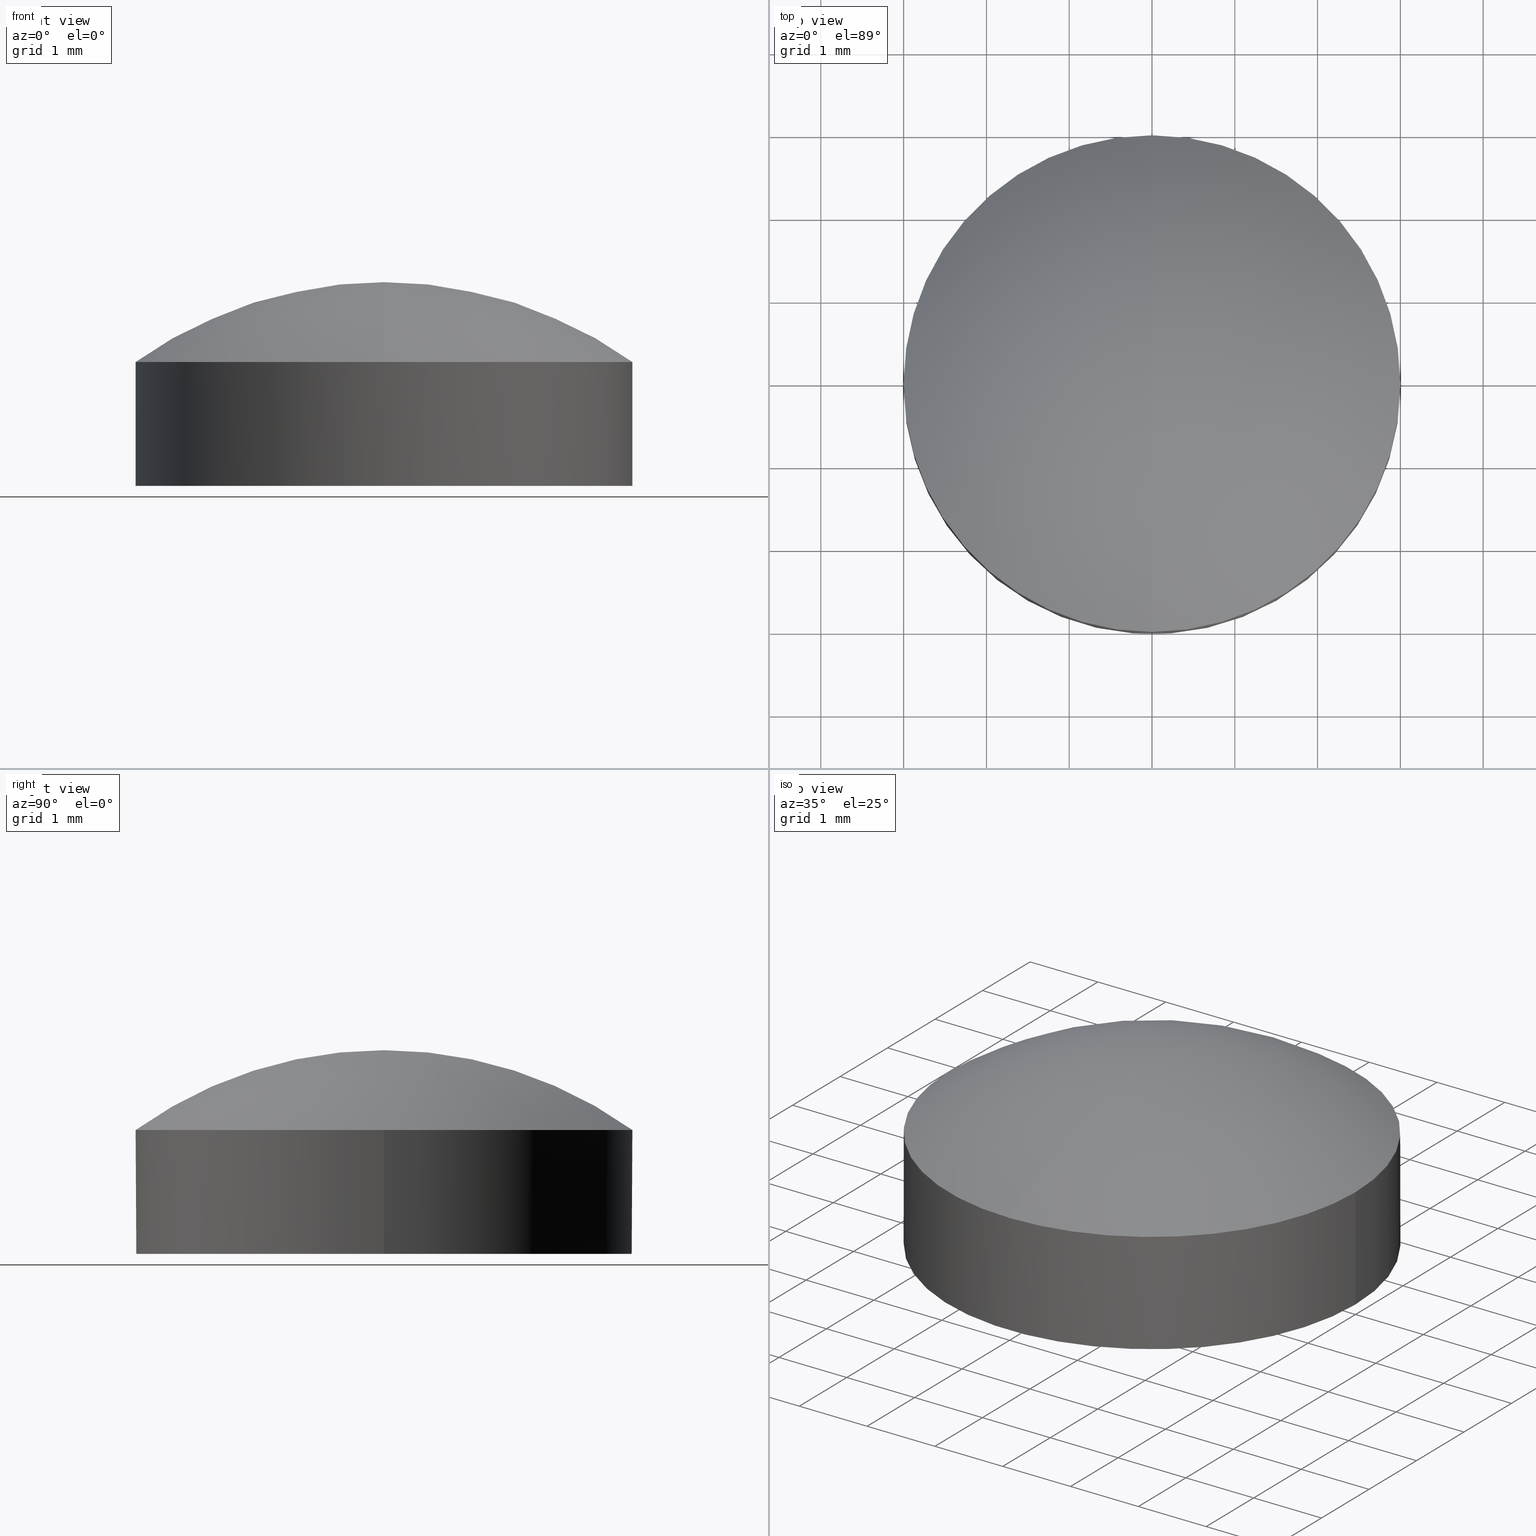
[diagram: canonical four-view strip — front | top / right | iso, engineering-drawing reading convention]
A machine part, canonical four-view strip (front | top / right | iso — engineering-drawing reading convention). The complete STEP part file that produces these views, byte-faithful:
ISO-10303-21;
HEADER;
FILE_DESCRIPTION (( 'STEP AP214' ),
    '1' );
FILE_NAME ('4411-E0W.STEP',
    '2009-12-21T17:00:14',
    ( ' ' ),
    ( ' ' ),
    'SwSTEP 2.0',
    'SolidWorks 2009',
    '' );
FILE_SCHEMA (( 'AUTOMOTIVE_DESIGN' ));
ENDSEC;

DATA;
#1 = VERTEX_POINT ( 'NONE', #44 ) ;
#2 = ORIENTED_EDGE ( 'NONE', *, *, #22, .F. ) ;
#3 = ORIENTED_EDGE ( 'NONE', *, *, #65, .F. ) ;
#4 = ADVANCED_FACE ( 'NONE', ( #34 ), #86, .T. ) ;
#5 = EDGE_LOOP ( 'NONE', ( #11, #6, #67, #3, #2 ) ) ;
#6 = ORIENTED_EDGE ( 'NONE', *, *, #9, .T. ) ;
#7 = ORIENTED_EDGE ( 'NONE', *, *, #68, .T. ) ;
#8 = ORIENTED_EDGE ( 'NONE', *, *, #65, .T. ) ;
#9 = EDGE_CURVE ( 'NONE', #1, #38, #80, .T. ) ;
#10 = EDGE_LOOP ( 'NONE', ( #63, #66 ) ) ;
#11 = ORIENTED_EDGE ( 'NONE', *, *, #41, .F. ) ;
#12 = ADVANCED_FACE ( 'NONE', ( #77 ), #32, .F. ) ;
#13 = CLOSED_SHELL ( 'NONE', ( #15, #37, #69, #4, #12 ) ) ;
#14 = VERTEX_POINT ( 'NONE', #121 ) ;
#15 = ADVANCED_FACE ( 'NONE', ( #124 ), #130, .T. ) ;
#16 = EDGE_CURVE ( 'NONE', #40, #30, #137, .T. ) ;
#17 = MANIFOLD_SOLID_BREP ( 'NONE', #13 ) ;
#18 = ORIENTED_EDGE ( 'NONE', *, *, #22, .T. ) ;
#19 = EDGE_CURVE ( 'NONE', #38, #1, #60, .T. ) ;
#20 = CARTESIAN_POINT ( 'NONE',  ( 0.0000000000000000000, 4.518946688853733400E-016, -1.230000000000000000 ) ) ;
#21 = AXIS2_PLACEMENT_3D ( 'NONE', #20, #48, #47 ) ;
#22 = EDGE_CURVE ( 'NONE', #36, #14, #171, .T. ) ;
#23 = EDGE_CURVE ( 'NONE', #30, #36, #177, .T. ) ;
#24 = EDGE_CURVE ( 'NONE', #14, #31, #152, .T. ) ;
#25 = ORIENTED_EDGE ( 'NONE', *, *, #19, .T. ) ;
#26 = EDGE_CURVE ( 'NONE', #38, #40, #168, .T. ) ;
#27 = ORIENTED_EDGE ( 'NONE', *, *, #23, .F. ) ;
#28 = ORIENTED_EDGE ( 'NONE', *, *, #41, .T. ) ;
#29 = ORIENTED_EDGE ( 'NONE', *, *, #23, .T. ) ;
#30 = VERTEX_POINT ( 'NONE', #175 ) ;
#31 = VERTEX_POINT ( 'NONE', #174 ) ;
#32 = PLANE ( 'NONE',  #21 ) ;
#33 = EDGE_LOOP ( 'NONE', ( #29, #18, #45, #61 ) ) ;
#34 = FACE_OUTER_BOUND ( 'NONE', #5, .T. ) ;
#35 = EDGE_LOOP ( 'NONE', ( #25, #28, #27, #42, #39 ) ) ;
#36 = VERTEX_POINT ( 'NONE', #161 ) ;
#37 = ADVANCED_FACE ( 'NONE', ( #160 ), #203, .T. ) ;
#38 = VERTEX_POINT ( 'NONE', #201 ) ;
#39 = ORIENTED_EDGE ( 'NONE', *, *, #26, .F. ) ;
#40 = VERTEX_POINT ( 'NONE', #196 ) ;
#41 = EDGE_CURVE ( 'NONE', #1, #36, #198, .T. ) ;
#42 = ORIENTED_EDGE ( 'NONE', *, *, #16, .F. ) ;
#43 = COLOUR_RGB ( '',0.9568627450980391500, 0.9490196078431372100, 0.9607843137254902200 ) ;
#44 = CARTESIAN_POINT ( 'NONE',  ( -2.999999999999999100, 3.673819061467130800E-016, -1.230000000000000200 ) ) ;
#45 = ORIENTED_EDGE ( 'NONE', *, *, #24, .T. ) ;
#46 =( GEOMETRIC_REPRESENTATION_CONTEXT ( 3 ) GLOBAL_UNCERTAINTY_ASSIGNED_CONTEXT ( ( #115 ) ) GLOBAL_UNIT_ASSIGNED_CONTEXT ( ( #113, #111, #122 ) ) REPRESENTATION_CONTEXT ( 'NONE', 'WORKASPACE' ) );
#47 = DIRECTION ( 'NONE',  ( 1.000000000000000000, 0.0000000000000000000, 0.0000000000000000000 ) ) ;
#48 = DIRECTION ( 'NONE',  ( 0.0000000000000000000, -0.0000000000000000000, 1.000000000000000000 ) ) ;
#49 = UNCERTAINTY_MEASURE_WITH_UNIT (LENGTH_MEASURE( 1.000000000000000100E-005 ), #162, 'distance_accuracy_value', 'NONE');
#50 = DIRECTION ( 'NONE',  ( 0.0000000000000000000, 0.0000000000000000000, -1.000000000000000000 ) ) ;
#51 = AXIS2_PLACEMENT_3D ( 'NONE', #58, #53, #56 ) ;
#52 =( GEOMETRIC_REPRESENTATION_CONTEXT ( 3 ) GLOBAL_UNCERTAINTY_ASSIGNED_CONTEXT ( ( #49 ) ) GLOBAL_UNIT_ASSIGNED_CONTEXT ( ( #162, #57, #54 ) ) REPRESENTATION_CONTEXT ( 'NONE', 'WORKASPACE' ) );
#53 = DIRECTION ( 'NONE',  ( -0.0000000000000000000, -0.0000000000000000000, 1.000000000000000000 ) ) ;
#54 =( NAMED_UNIT ( * ) SI_UNIT ( $, .STERADIAN. ) SOLID_ANGLE_UNIT ( ) );
#55 = DIRECTION ( 'NONE',  ( 1.000000000000000000, 0.0000000000000000000, 0.0000000000000000000 ) ) ;
#56 = DIRECTION ( 'NONE',  ( 1.000000000000000000, 0.0000000000000000000, 0.0000000000000000000 ) ) ;
#57 =( NAMED_UNIT ( * ) PLANE_ANGLE_UNIT ( ) SI_UNIT ( $, .RADIAN. ) );
#58 = CARTESIAN_POINT ( 'NONE',  ( 0.0000000000000000000, 0.0000000000000000000, -1.230000000000000200 ) ) ;
#59 =( GEOMETRIC_REPRESENTATION_CONTEXT ( 3 ) GLOBAL_UNCERTAINTY_ASSIGNED_CONTEXT ( ( #143 ) ) GLOBAL_UNIT_ASSIGNED_CONTEXT ( ( #138, #146, #144 ) ) REPRESENTATION_CONTEXT ( 'NONE', 'WORKASPACE' ) );
#60 = CIRCLE ( 'NONE', #51, 2.999999999999999100 ) ;
#61 = ORIENTED_EDGE ( 'NONE', *, *, #68, .F. ) ;
#62 = EDGE_LOOP ( 'NONE', ( #70, #8, #64, #7 ) ) ;
#63 = ORIENTED_EDGE ( 'NONE', *, *, #19, .F. ) ;
#64 = ORIENTED_EDGE ( 'NONE', *, *, #16, .T. ) ;
#65 = EDGE_CURVE ( 'NONE', #14, #40, #199, .T. ) ;
#66 = ORIENTED_EDGE ( 'NONE', *, *, #9, .F. ) ;
#67 = ORIENTED_EDGE ( 'NONE', *, *, #26, .T. ) ;
#68 = EDGE_CURVE ( 'NONE', #30, #31, #192, .T. ) ;
#69 = ADVANCED_FACE ( 'NONE', ( #212 ), #260, .T. ) ;
#70 = ORIENTED_EDGE ( 'NONE', *, *, #24, .F. ) ;
#71 =( LENGTH_UNIT ( ) NAMED_UNIT ( * ) SI_UNIT ( .MILLI., .METRE. ) );
#72 =( NAMED_UNIT ( * ) SI_UNIT ( $, .STERADIAN. ) SOLID_ANGLE_UNIT ( ) );
#73 = DIRECTION ( 'NONE',  ( 1.000000000000000000, 0.0000000000000000000, 0.0000000000000000000 ) ) ;
#74 = DIRECTION ( 'NONE',  ( -0.0000000000000000000, -0.0000000000000000000, 1.000000000000000000 ) ) ;
#75 = CARTESIAN_POINT ( 'NONE',  ( 0.0000000000000000000, 0.0000000000000000000, -1.230000000000000200 ) ) ;
#76 = AXIS2_PLACEMENT_3D ( 'NONE', #75, #74, #73 ) ;
#77 = FACE_OUTER_BOUND ( 'NONE', #10, .T. ) ;
#78 = PRESENTATION_LAYER_ASSIGNMENT (  '', '', ( #92 ) ) ;
#79 = MECHANICAL_DESIGN_GEOMETRIC_PRESENTATION_REPRESENTATION (  '', ( #92 ), #87 ) ;
#80 = CIRCLE ( 'NONE', #76, 2.999999999999999100 ) ;
#81 = DIRECTION ( 'NONE',  ( 1.000000000000000000, 0.0000000000000000000, 0.0000000000000000000 ) ) ;
#82 = DIRECTION ( 'NONE',  ( -0.0000000000000000000, -0.0000000000000000000, 1.000000000000000000 ) ) ;
#83 = CARTESIAN_POINT ( 'NONE',  ( 0.0000000000000000000, 0.0000000000000000000, 4.308132045400366600 ) ) ;
#84 = FILL_AREA_STYLE_COLOUR ( '', #43 ) ;
#85 = FILL_AREA_STYLE ('',( #84 ) ) ;
#86 = CYLINDRICAL_SURFACE ( 'NONE', #95, 2.999999999999999100 ) ;
#87 =( GEOMETRIC_REPRESENTATION_CONTEXT ( 3 ) GLOBAL_UNCERTAINTY_ASSIGNED_CONTEXT ( ( #108 ) ) GLOBAL_UNIT_ASSIGNED_CONTEXT ( ( #71, #89, #72 ) ) REPRESENTATION_CONTEXT ( 'NONE', 'WORKASPACE' ) );
#88 = PRESENTATION_STYLE_ASSIGNMENT (( #94 ) ) ;
#89 =( NAMED_UNIT ( * ) PLANE_ANGLE_UNIT ( ) SI_UNIT ( $, .RADIAN. ) );
#90 =( GEOMETRIC_REPRESENTATION_CONTEXT ( 3 ) GLOBAL_UNCERTAINTY_ASSIGNED_CONTEXT ( ( #91 ) ) GLOBAL_UNIT_ASSIGNED_CONTEXT ( ( #96, #110, #109 ) ) REPRESENTATION_CONTEXT ( 'NONE', 'WORKASPACE' ) );
#91 = UNCERTAINTY_MEASURE_WITH_UNIT (LENGTH_MEASURE( 1.000000000000000100E-005 ), #96, 'distance_accuracy_value', 'NONE');
#92 = STYLED_ITEM ( 'NONE', ( #88 ), #4 ) ;
#93 = SURFACE_SIDE_STYLE ('',( #107 ) ) ;
#94 = SURFACE_STYLE_USAGE ( .BOTH. , #93 ) ;
#95 = AXIS2_PLACEMENT_3D ( 'NONE', #83, #82, #81 ) ;
#96 =( LENGTH_UNIT ( ) NAMED_UNIT ( * ) SI_UNIT ( .MILLI., .METRE. ) );
#97 = MECHANICAL_DESIGN_GEOMETRIC_PRESENTATION_REPRESENTATION (  '', ( #99 ), #90 ) ;
#98 = PRESENTATION_LAYER_ASSIGNMENT (  '', '', ( #99 ) ) ;
#99 = STYLED_ITEM ( 'NONE', ( #100 ), #12 ) ;
#100 = PRESENTATION_STYLE_ASSIGNMENT (( #101 ) ) ;
#101 = SURFACE_STYLE_USAGE ( .BOTH. , #102 ) ;
#102 = SURFACE_SIDE_STYLE ('',( #103 ) ) ;
#103 = SURFACE_STYLE_FILL_AREA ( #104 ) ;
#104 = FILL_AREA_STYLE ('',( #105 ) ) ;
#105 = FILL_AREA_STYLE_COLOUR ( '', #106 ) ;
#106 = COLOUR_RGB ( '',0.9568627450980391500, 0.9490196078431372100, 0.9607843137254902200 ) ;
#107 = SURFACE_STYLE_FILL_AREA ( #85 ) ;
#108 = UNCERTAINTY_MEASURE_WITH_UNIT (LENGTH_MEASURE( 1.000000000000000100E-005 ), #71, 'distance_accuracy_value', 'NONE');
#109 =( NAMED_UNIT ( * ) SI_UNIT ( $, .STERADIAN. ) SOLID_ANGLE_UNIT ( ) );
#110 =( NAMED_UNIT ( * ) PLANE_ANGLE_UNIT ( ) SI_UNIT ( $, .RADIAN. ) );
#111 =( NAMED_UNIT ( * ) PLANE_ANGLE_UNIT ( ) SI_UNIT ( $, .RADIAN. ) );
#112 = SURFACE_STYLE_FILL_AREA ( #126 ) ;
#113 =( LENGTH_UNIT ( ) NAMED_UNIT ( * ) SI_UNIT ( .MILLI., .METRE. ) );
#114 = MECHANICAL_DESIGN_GEOMETRIC_PRESENTATION_REPRESENTATION (  '', ( #123 ), #46 ) ;
#115 = UNCERTAINTY_MEASURE_WITH_UNIT (LENGTH_MEASURE( 1.000000000000000100E-005 ), #113, 'distance_accuracy_value', 'NONE');
#116 = FILL_AREA_STYLE_COLOUR ( '', #120 ) ;
#117 = PRESENTATION_LAYER_ASSIGNMENT (  '', '', ( #123 ) ) ;
#118 = PRESENTATION_STYLE_ASSIGNMENT (( #119 ) ) ;
#119 = SURFACE_STYLE_USAGE ( .BOTH. , #125 ) ;
#120 = COLOUR_RGB ( '',0.9568627450980391500, 0.9490196078431372100, 0.9607843137254902200 ) ;
#121 = CARTESIAN_POINT ( 'NONE',  ( -3.673819061467129300E-016, -2.999999999999998200, 0.2659885331902224200 ) ) ;
#122 =( NAMED_UNIT ( * ) SI_UNIT ( $, .STERADIAN. ) SOLID_ANGLE_UNIT ( ) );
#123 = STYLED_ITEM ( 'NONE', ( #118 ), #15 ) ;
#124 = FACE_OUTER_BOUND ( 'NONE', #35, .T. ) ;
#125 = SURFACE_SIDE_STYLE ('',( #112 ) ) ;
#126 = FILL_AREA_STYLE ('',( #116 ) ) ;
#127 = CARTESIAN_POINT ( 'NONE',  ( 0.0000000000000000000, 0.0000000000000000000, 4.308132045400366600 ) ) ;
#128 = DIRECTION ( 'NONE',  ( 1.000000000000000000, 0.0000000000000000000, 0.0000000000000000000 ) ) ;
#129 = AXIS2_PLACEMENT_3D ( 'NONE', #127, #131, #128 ) ;
#130 = CYLINDRICAL_SURFACE ( 'NONE', #129, 2.999999999999999100 ) ;
#131 = DIRECTION ( 'NONE',  ( -0.0000000000000000000, -0.0000000000000000000, 1.000000000000000000 ) ) ;
#132 = MECHANICAL_DESIGN_GEOMETRIC_PRESENTATION_REPRESENTATION (  '', ( #145 ), #59 ) ;
#133 = FILL_AREA_STYLE ('',( #150 ) ) ;
#134 = DIRECTION ( 'NONE',  ( 1.000000000000000000, 0.0000000000000000000, 0.0000000000000000000 ) ) ;
#135 = SURFACE_SIDE_STYLE ('',( #136 ) ) ;
#136 = SURFACE_STYLE_FILL_AREA ( #133 ) ;
#137 = CIRCLE ( 'NONE', #142, 2.999999999999999100 ) ;
#138 =( LENGTH_UNIT ( ) NAMED_UNIT ( * ) SI_UNIT ( .MILLI., .METRE. ) );
#139 = SURFACE_STYLE_USAGE ( .BOTH. , #135 ) ;
#140 = PRESENTATION_STYLE_ASSIGNMENT (( #139 ) ) ;
#141 = COLOUR_RGB ( '',0.7960784313725489700, 0.8235294117647058400, 0.9372549019607843100 ) ;
#142 = AXIS2_PLACEMENT_3D ( 'NONE', #147, #149, #134 ) ;
#143 = UNCERTAINTY_MEASURE_WITH_UNIT (LENGTH_MEASURE( 1.000000000000000100E-005 ), #138, 'distance_accuracy_value', 'NONE');
#144 =( NAMED_UNIT ( * ) SI_UNIT ( $, .STERADIAN. ) SOLID_ANGLE_UNIT ( ) );
#145 = STYLED_ITEM ( 'NONE', ( #140 ), #17 ) ;
#146 =( NAMED_UNIT ( * ) PLANE_ANGLE_UNIT ( ) SI_UNIT ( $, .RADIAN. ) );
#147 = CARTESIAN_POINT ( 'NONE',  ( 0.0000000000000000000, 0.0000000000000000000, 0.2659885331902219800 ) ) ;
#148 = PRESENTATION_LAYER_ASSIGNMENT (  '', '', ( #145 ) ) ;
#149 = DIRECTION ( 'NONE',  ( -0.0000000000000000000, -0.0000000000000000000, 1.000000000000000000 ) ) ;
#150 = FILL_AREA_STYLE_COLOUR ( '', #141 ) ;
#151 = AXIS2_PLACEMENT_3D ( 'NONE', #169, #180, #178 ) ;
#152 = CIRCLE ( 'NONE', #184, 5.149999999999998600 ) ;
#153 = PRESENTATION_STYLE_ASSIGNMENT (( #154 ) ) ;
#154 = SURFACE_STYLE_USAGE ( .BOTH. , #155 ) ;
#155 = SURFACE_SIDE_STYLE ('',( #156 ) ) ;
#156 = SURFACE_STYLE_FILL_AREA ( #157 ) ;
#157 = FILL_AREA_STYLE ('',( #158 ) ) ;
#158 = FILL_AREA_STYLE_COLOUR ( '', #159 ) ;
#159 = COLOUR_RGB ( '',0.9568627450980391500, 0.9490196078431372100, 0.9607843137254902200 ) ;
#160 = FACE_OUTER_BOUND ( 'NONE', #33, .T. ) ;
#161 = CARTESIAN_POINT ( 'NONE',  ( -2.999999999999999100, 3.673819061467130800E-016, 0.2659885331902219800 ) ) ;
#162 =( LENGTH_UNIT ( ) NAMED_UNIT ( * ) SI_UNIT ( .MILLI., .METRE. ) );
#163 = MECHANICAL_DESIGN_GEOMETRIC_PRESENTATION_REPRESENTATION (  '', ( #165 ), #52 ) ;
#164 = PRESENTATION_LAYER_ASSIGNMENT (  '', '', ( #165 ) ) ;
#165 = STYLED_ITEM ( 'NONE', ( #153 ), #37 ) ;
#166 = VECTOR ( 'NONE', #176, 1000.000000000000000 ) ;
#167 = CARTESIAN_POINT ( 'NONE',  ( 2.999999999999999100, 0.0000000000000000000, 4.308132045400366600 ) ) ;
#168 = LINE ( 'NONE', #167, #166 ) ;
#169 = CARTESIAN_POINT ( 'NONE',  ( 0.0000000000000000000, 0.0000000000000000000, 0.2659885331902219800 ) ) ;
#170 = DIRECTION ( 'NONE',  ( -1.224606353822377000E-016, -1.000000000000000000, 0.0000000000000000000 ) ) ;
#171 = CIRCLE ( 'NONE', #173, 2.999999999999999100 ) ;
#172 = DIRECTION ( 'NONE',  ( 1.000000000000000000, 0.0000000000000000000, 0.0000000000000000000 ) ) ;
#173 = AXIS2_PLACEMENT_3D ( 'NONE', #181, #179, #172 ) ;
#174 = CARTESIAN_POINT ( 'NONE',  ( 0.0000000000000000000, 3.153361361092620100E-016, 1.230000000000002000 ) ) ;
#175 = CARTESIAN_POINT ( 'NONE',  ( 0.0000000000000000000, 2.999999999999998200, 0.2659885331902224200 ) ) ;
#176 = DIRECTION ( 'NONE',  ( -0.0000000000000000000, -0.0000000000000000000, 1.000000000000000000 ) ) ;
#177 = CIRCLE ( 'NONE', #151, 2.999999999999999100 ) ;
#178 = DIRECTION ( 'NONE',  ( 1.000000000000000000, 0.0000000000000000000, 0.0000000000000000000 ) ) ;
#179 = DIRECTION ( 'NONE',  ( -0.0000000000000000000, -0.0000000000000000000, 1.000000000000000000 ) ) ;
#180 = DIRECTION ( 'NONE',  ( -0.0000000000000000000, -0.0000000000000000000, 1.000000000000000000 ) ) ;
#181 = CARTESIAN_POINT ( 'NONE',  ( 0.0000000000000000000, 0.0000000000000000000, 0.2659885331902219800 ) ) ;
#182 = DIRECTION ( 'NONE',  ( -1.000000000000000000, 1.224606353822377300E-016, 0.0000000000000000000 ) ) ;
#183 = CARTESIAN_POINT ( 'NONE',  ( 0.0000000000000000000, 0.0000000000000000000, -3.919999999999996400 ) ) ;
#184 = AXIS2_PLACEMENT_3D ( 'NONE', #183, #182, #170 ) ;
#185 = DIRECTION ( 'NONE',  ( 1.000000000000000000, 0.0000000000000000000, 0.0000000000000000000 ) ) ;
#186 = DIRECTION ( 'NONE',  ( -0.0000000000000000000, -0.0000000000000000000, 1.000000000000000000 ) ) ;
#187 = CARTESIAN_POINT ( 'NONE',  ( 0.0000000000000000000, 0.0000000000000000000, 0.2659885331902219800 ) ) ;
#188 = AXIS2_PLACEMENT_3D ( 'NONE', #187, #186, #185 ) ;
#189 = CARTESIAN_POINT ( 'NONE',  ( 0.0000000000000000000, 0.0000000000000000000, -3.919999999999996400 ) ) ;
#190 = CARTESIAN_POINT ( 'NONE',  ( 0.0000000000000000000, 0.0000000000000000000, -3.919999999999996400 ) ) ;
#191 = AXIS2_PLACEMENT_3D ( 'NONE', #190, #55, #50 ) ;
#192 = CIRCLE ( 'NONE', #191, 5.149999999999998600 ) ;
#193 = DIRECTION ( 'NONE',  ( -0.0000000000000000000, -0.0000000000000000000, 1.000000000000000000 ) ) ;
#194 = VECTOR ( 'NONE', #193, 1000.000000000000000 ) ;
#195 = CARTESIAN_POINT ( 'NONE',  ( -2.999999999999999100, 3.673819061467130800E-016, 4.308132045400366600 ) ) ;
#196 = CARTESIAN_POINT ( 'NONE',  ( 2.999999999999999100, 0.0000000000000000000, 0.2659885331902219800 ) ) ;
#197 = AXIS2_PLACEMENT_3D ( 'NONE', #189, #202, #200 ) ;
#198 = LINE ( 'NONE', #195, #194 ) ;
#199 = CIRCLE ( 'NONE', #188, 2.999999999999999100 ) ;
#200 = DIRECTION ( 'NONE',  ( 0.0000000000000000000, 1.000000000000000000, 0.0000000000000000000 ) ) ;
#201 = CARTESIAN_POINT ( 'NONE',  ( 2.999999999999999100, 0.0000000000000000000, -1.230000000000000200 ) ) ;
#202 = DIRECTION ( 'NONE',  ( -1.000000000000000000, 0.0000000000000000000, 0.0000000000000000000 ) ) ;
#203 = SPHERICAL_SURFACE ( 'NONE', #197, 5.149999999999998600 ) ;
#204 =( NAMED_UNIT ( * ) PLANE_ANGLE_UNIT ( ) SI_UNIT ( $, .RADIAN. ) );
#205 = FILL_AREA_STYLE_COLOUR ( '', #210 ) ;
#206 = FILL_AREA_STYLE ('',( #205 ) ) ;
#207 = SURFACE_SIDE_STYLE ('',( #216 ) ) ;
#208 = PRESENTATION_STYLE_ASSIGNMENT (( #215 ) ) ;
#209 = STYLED_ITEM ( 'NONE', ( #208 ), #69 ) ;
#210 = COLOUR_RGB ( '',0.9568627450980391500, 0.9490196078431372100, 0.9607843137254902200 ) ;
#211 = PRESENTATION_LAYER_ASSIGNMENT (  '', '', ( #209 ) ) ;
#212 = FACE_OUTER_BOUND ( 'NONE', #62, .T. ) ;
#213 = MECHANICAL_DESIGN_GEOMETRIC_PRESENTATION_REPRESENTATION (  '', ( #209 ), #261 ) ;
#214 =( LENGTH_UNIT ( ) NAMED_UNIT ( * ) SI_UNIT ( .MILLI., .METRE. ) );
#215 = SURFACE_STYLE_USAGE ( .BOTH. , #207 ) ;
#216 = SURFACE_STYLE_FILL_AREA ( #206 ) ;
#217 = UNCERTAINTY_MEASURE_WITH_UNIT (LENGTH_MEASURE( 1.000000000000000100E-005 ), #214, 'distance_accuracy_value', 'NONE');
#218 =( NAMED_UNIT ( * ) SI_UNIT ( $, .STERADIAN. ) SOLID_ANGLE_UNIT ( ) );
#219 = PRODUCT_RELATED_PRODUCT_CATEGORY ( 'part', '', ( #226 ) ) ;
#220 = PRODUCT_DEFINITION_FORMATION_WITH_SPECIFIED_SOURCE ( 'ANY', '', #226, .NOT_KNOWN. ) ;
#221 = PRODUCT_DEFINITION_SHAPE ( 'NONE', 'NONE',  #222 ) ;
#222 = PRODUCT_DEFINITION ( 'UNKNOWN', '', #220, #223 ) ;
#223 = PRODUCT_DEFINITION_CONTEXT ( 'detailed design', #225, 'design' ) ;
#224 = APPLICATION_PROTOCOL_DEFINITION ( 'draft international standard', 'automotive_design', 1998, #225 ) ;
#225 = APPLICATION_CONTEXT ( 'automotive_design' ) ;
#226 = PRODUCT ( '4411-E0W', '4411-E0W', '', ( #227 ) ) ;
#227 = PRODUCT_CONTEXT ( 'NONE', #247, 'mechanical' ) ;
#228 = APPLICATION_PROTOCOL_DEFINITION ( 'draft international standard', 'automotive_design', 1998, #247 ) ;
#229 = DIRECTION ( 'NONE',  ( 1.000000000000000000, 0.0000000000000000000, 0.0000000000000000000 ) ) ;
#230 = DIRECTION ( 'NONE',  ( 0.0000000000000000000, 0.0000000000000000000, 1.000000000000000000 ) ) ;
#231 = AXIS2_PLACEMENT_3D ( 'NONE', #259, #230, #229 ) ;
#232 =( GEOMETRIC_REPRESENTATION_CONTEXT ( 3 ) GLOBAL_UNCERTAINTY_ASSIGNED_CONTEXT ( ( #233 ) ) GLOBAL_UNIT_ASSIGNED_CONTEXT ( ( #236, #235, #234 ) ) REPRESENTATION_CONTEXT ( 'NONE', 'WORKASPACE' ) );
#233 = UNCERTAINTY_MEASURE_WITH_UNIT (LENGTH_MEASURE( 1.000000000000000100E-005 ), #236, 'distance_accuracy_value', 'NONE');
#234 =( NAMED_UNIT ( * ) SI_UNIT ( $, .STERADIAN. ) SOLID_ANGLE_UNIT ( ) );
#235 =( NAMED_UNIT ( * ) PLANE_ANGLE_UNIT ( ) SI_UNIT ( $, .RADIAN. ) );
#236 =( LENGTH_UNIT ( ) NAMED_UNIT ( * ) SI_UNIT ( .MILLI., .METRE. ) );
#237 = MECHANICAL_DESIGN_GEOMETRIC_PRESENTATION_REPRESENTATION (  '', ( #239 ), #232 ) ;
#238 = PRESENTATION_LAYER_ASSIGNMENT (  '', '', ( #239 ) ) ;
#239 = STYLED_ITEM ( 'NONE', ( #240 ), #249 ) ;
#240 = PRESENTATION_STYLE_ASSIGNMENT (( #241 ) ) ;
#241 = SURFACE_STYLE_USAGE ( .BOTH. , #242 ) ;
#242 = SURFACE_SIDE_STYLE ('',( #243 ) ) ;
#243 = SURFACE_STYLE_FILL_AREA ( #244 ) ;
#244 = FILL_AREA_STYLE ('',( #245 ) ) ;
#245 = FILL_AREA_STYLE_COLOUR ( '', #246 ) ;
#246 = COLOUR_RGB ( '',0.7960784313725489700, 0.8235294117647058400, 0.9372549019607843100 ) ;
#247 = APPLICATION_CONTEXT ( 'automotive_design' ) ;
#248 = SHAPE_DEFINITION_REPRESENTATION ( #221, #249 ) ;
#249 = ADVANCED_BREP_SHAPE_REPRESENTATION ( '4411-E0W', ( #17, #231 ), #250 ) ;
#250 =( GEOMETRIC_REPRESENTATION_CONTEXT ( 3 ) GLOBAL_UNCERTAINTY_ASSIGNED_CONTEXT ( ( #251 ) ) GLOBAL_UNIT_ASSIGNED_CONTEXT ( ( #254, #253, #252 ) ) REPRESENTATION_CONTEXT ( 'NONE', 'WORKASPACE' ) );
#251 = UNCERTAINTY_MEASURE_WITH_UNIT (LENGTH_MEASURE( 1.000000000000000100E-005 ), #254, 'distance_accuracy_value', 'NONE');
#252 =( NAMED_UNIT ( * ) SI_UNIT ( $, .STERADIAN. ) SOLID_ANGLE_UNIT ( ) );
#253 =( NAMED_UNIT ( * ) PLANE_ANGLE_UNIT ( ) SI_UNIT ( $, .RADIAN. ) );
#254 =( LENGTH_UNIT ( ) NAMED_UNIT ( * ) SI_UNIT ( .MILLI., .METRE. ) );
#255 = DIRECTION ( 'NONE',  ( 0.0000000000000000000, 1.000000000000000000, 0.0000000000000000000 ) ) ;
#256 = DIRECTION ( 'NONE',  ( -1.000000000000000000, 0.0000000000000000000, 0.0000000000000000000 ) ) ;
#257 = CARTESIAN_POINT ( 'NONE',  ( 0.0000000000000000000, 0.0000000000000000000, -3.919999999999996400 ) ) ;
#258 = AXIS2_PLACEMENT_3D ( 'NONE', #257, #256, #255 ) ;
#259 = CARTESIAN_POINT ( 'NONE',  ( 0.0000000000000000000, 0.0000000000000000000, 0.0000000000000000000 ) ) ;
#260 = SPHERICAL_SURFACE ( 'NONE', #258, 5.149999999999998600 ) ;
#261 =( GEOMETRIC_REPRESENTATION_CONTEXT ( 3 ) GLOBAL_UNCERTAINTY_ASSIGNED_CONTEXT ( ( #217 ) ) GLOBAL_UNIT_ASSIGNED_CONTEXT ( ( #214, #204, #218 ) ) REPRESENTATION_CONTEXT ( 'NONE', 'WORKASPACE' ) );
ENDSEC;
END-ISO-10303-21;
